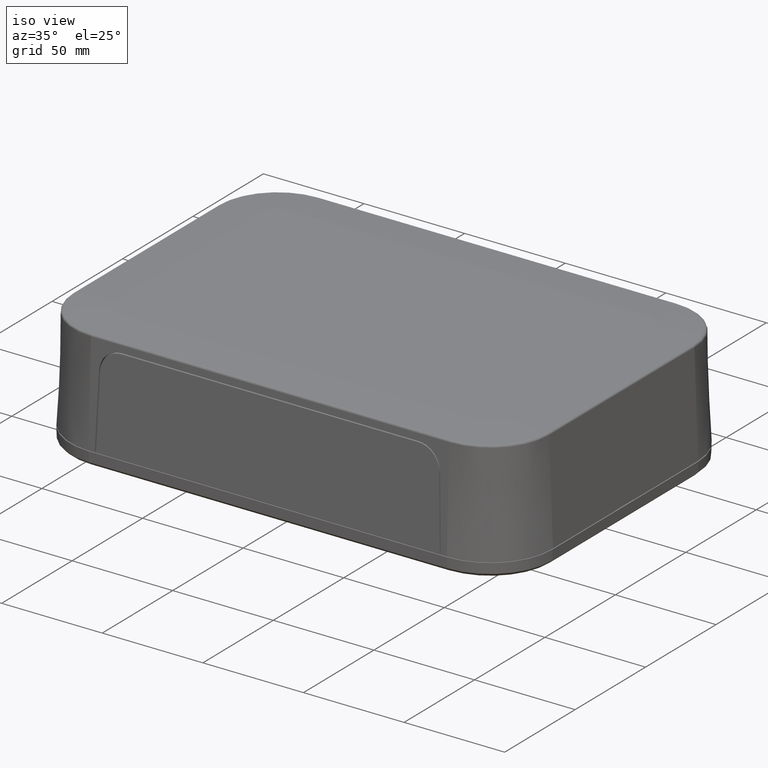
[diagram: clean part render]
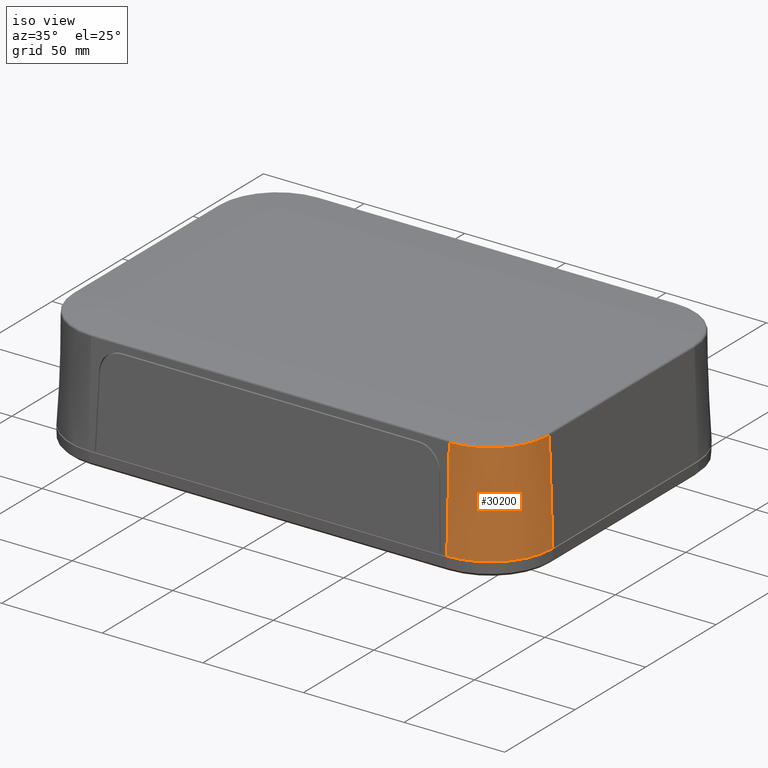
[diagram: same view with one face highlighted and labeled with its STEP entity id]
A machine part, iso view. The second image highlights one B-rep face of the part: STEP entity #30200.
In plain terms, the highlighted conical surface has half-angle 2 deg.
Its self-contained STEP definition (entity closure, byte-faithful):
#22197=CARTESIAN_POINT('',(120.00000000000003,-51.499999999999993,0.0));
#22198=VERTEX_POINT('',#22197);
#22205=CARTESIAN_POINT('',(89.000000000000028,-82.5,0.0));
#22206=VERTEX_POINT('',#22205);
#22207=CARTESIAN_POINT('',(89.000000000000028,-51.499999999999993,0.0));
#22208=DIRECTION('',(0.0,0.0,-1.0));
#22209=DIRECTION('',(0.0,1.0,0.0));
#22210=AXIS2_PLACEMENT_3D('',#22207,#22208,#22209);
#22211=CIRCLE('',#22210,31.0);
#22212=EDGE_CURVE('',#22198,#22206,#22211,.T.);
#22356=CARTESIAN_POINT('',(118.23949113958464,-51.499999999999993,50.414377633672117));
#22357=VERTEX_POINT('',#22356);
#22366=CARTESIAN_POINT('',(120.00000000000003,-51.499999999999993,0.0));
#22367=DIRECTION('',(-0.034899496702501,0.0,0.999390827019096));
#22368=VECTOR('',#22367,50.445107430137362);
#22369=LINE('',#22366,#22368);
#22370=EDGE_CURVE('',#22198,#22357,#22369,.T.);
#30176=CARTESIAN_POINT('',(89.000000000000028,-51.499999999999993,0.0));
#30177=DIRECTION('',(0.0,0.0,-1.0));
#30178=DIRECTION('',(0.0,1.0,0.0));
#30179=AXIS2_PLACEMENT_3D('',#30176,#30177,#30178);
#30180=CONICAL_SURFACE('',#30179,31.0,2.0);
#30181=CARTESIAN_POINT('',(89.000000000000028,-80.739491139584615,50.414377633672146));
#30182=VERTEX_POINT('',#30181);
#30183=CARTESIAN_POINT('',(89.000000000000028,-51.5,50.414377633672117));
#30184=DIRECTION('',(0.0,0.0,1.0));
#30185=DIRECTION('',(0.707106781186547,-0.707106781186548,0.0));
#30186=AXIS2_PLACEMENT_3D('',#30183,#30184,#30185);
#30187=CIRCLE('',#30186,29.239491139584604);
#30188=EDGE_CURVE('',#30182,#22357,#30187,.T.);
#30189=ORIENTED_EDGE('',*,*,#30188,.F.);
#30190=CARTESIAN_POINT('',(89.000000000000028,-82.5,0.0));
#30191=DIRECTION('',(0.0,0.034899496702501,0.999390827019096));
#30192=VECTOR('',#30191,50.445107430137391);
#30193=LINE('',#30190,#30192);
#30194=EDGE_CURVE('',#22206,#30182,#30193,.T.);
#30195=ORIENTED_EDGE('',*,*,#30194,.F.);
#30196=ORIENTED_EDGE('',*,*,#22212,.F.);
#30197=ORIENTED_EDGE('',*,*,#22370,.T.);
#30198=EDGE_LOOP('',(#30189,#30195,#30196,#30197));
#30199=FACE_OUTER_BOUND('',#30198,.T.);
#30200=ADVANCED_FACE('',(#30199),#30180,.T.);